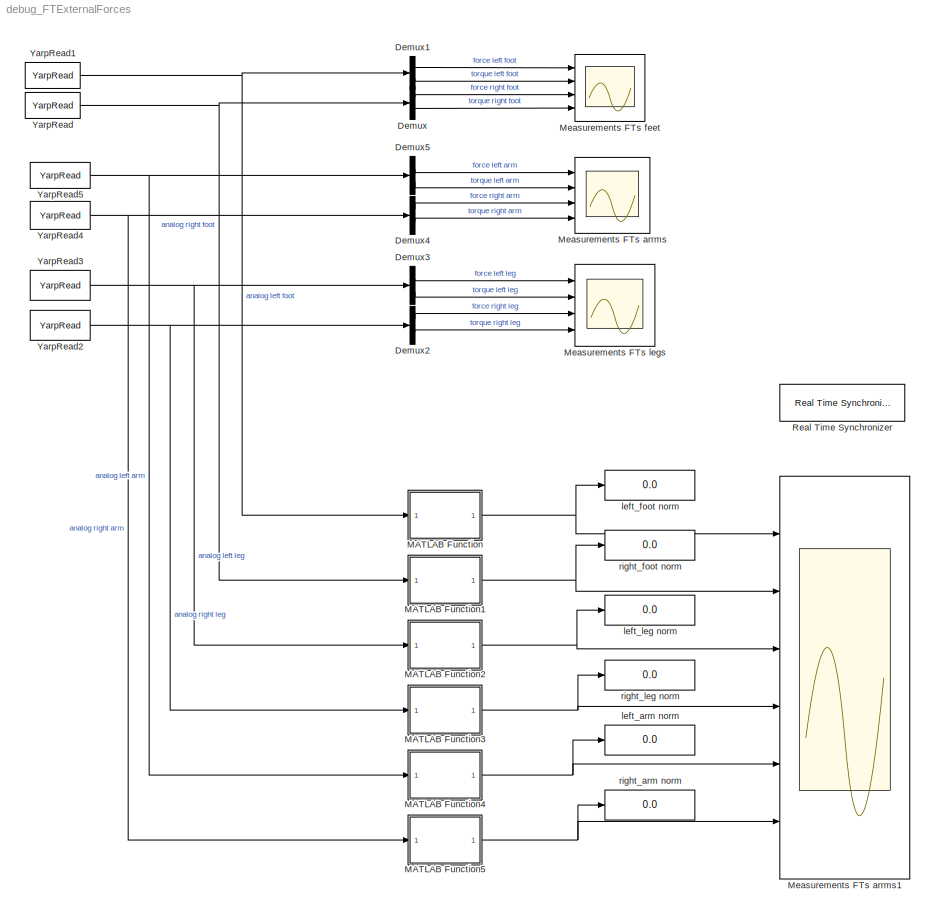
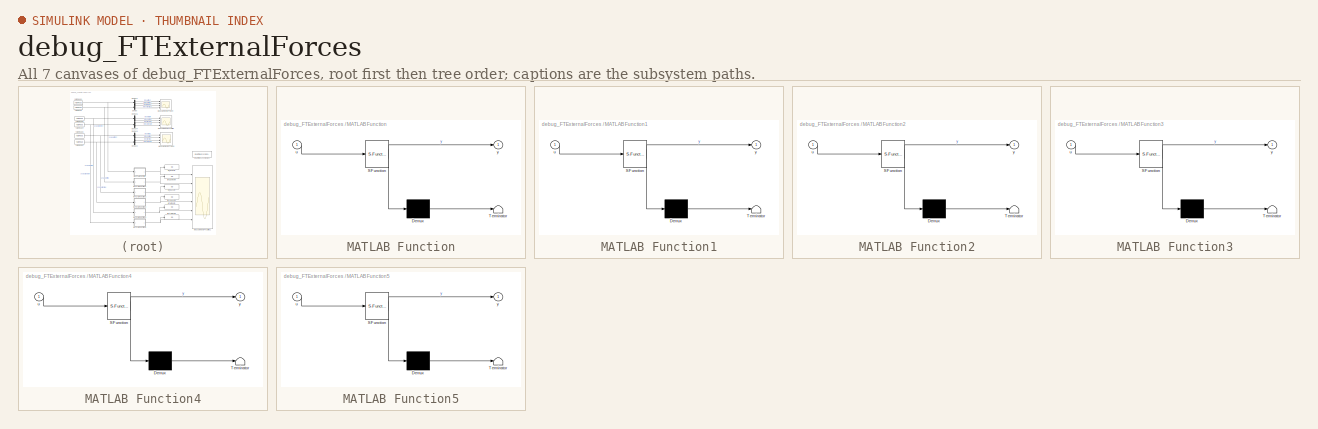
[diagram: thumbnail index - all 7 canvases of the model, root first then tree order]
MODEL debug_FTExternalForces
KIND model
CONFIG InitFcn = ROBOT_DOF=23;
BLOCK [Demux] Demux
  Outputs = 2
  Ports = [1, 2]
  SID = 18
BLOCK [Demux] Demux1
  Outputs = 2
  Ports = [1, 2]
  SID = 19
BLOCK [Demux] Demux2
  Outputs = 2
  Ports = [1, 2]
  SID = 25
BLOCK [Demux] Demux3
  Outputs = 2
  Ports = [1, 2]
  SID = 26
BLOCK [Demux] Demux4
  Outputs = 2
  Ports = [1, 2]
  SID = 34
BLOCK [Demux] Demux5
  Outputs = 2
  Ports = [1, 2]
  SID = 35
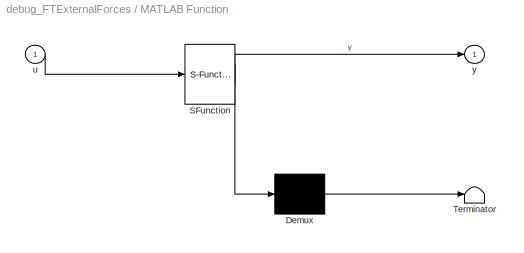
BLOCK [SubSystem] MATLAB Function
  ErrorFcn = Stateflow.Translate.translate
  PermitHierarchicalResolution = ExplicitOnly
  Ports = [1, 1]
  RequestExecContextInheritance = off
  SFBlockType = MATLAB Function
  SID = 43
  TreatAsAtomicUnit = on
BLOCK [Demux] MATLAB Function/ Demux 
  Outputs = 1
  Ports = [1, 1]
  SID = 43::86
BLOCK [S-Function] MATLAB Function/ SFunction 
  EnableBusSupport = off
  FunctionName = sf_sfun
  PortCounts = [1 2]
  Ports = [1, 2]
  SFcnIsStateOwnerBlock = off
  SFunctionDeploymentMode = off
  SID = 43::85
  Tag = Stateflow S-Function 2
BLOCK [Terminator] MATLAB Function/ Terminator 
  SID = 43::87
BLOCK [Inport] MATLAB Function/u
  SID = 43::1
BLOCK [Outport] MATLAB Function/y
  SID = 43::5
  VectorParamsAs1DForOutWhenUnconnected = off
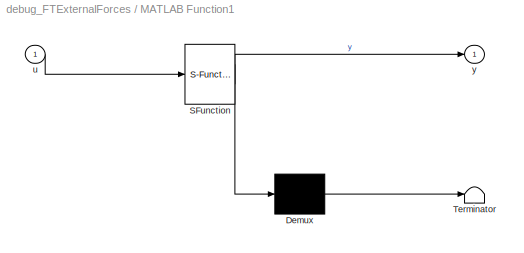
BLOCK [SubSystem] MATLAB Function1
  ErrorFcn = Stateflow.Translate.translate
  PermitHierarchicalResolution = ExplicitOnly
  Ports = [1, 1]
  RequestExecContextInheritance = off
  SFBlockType = MATLAB Function
  SID = 59
  TreatAsAtomicUnit = on
BLOCK [Demux] MATLAB Function1/ Demux 
  Outputs = 1
  Ports = [1, 1]
  SID = 59::86
BLOCK [S-Function] MATLAB Function1/ SFunction 
  EnableBusSupport = off
  FunctionName = sf_sfun
  PortCounts = [1 2]
  Ports = [1, 2]
  SFcnIsStateOwnerBlock = off
  SFunctionDeploymentMode = off
  SID = 59::85
  Tag = Stateflow S-Function 1
BLOCK [Terminator] MATLAB Function1/ Terminator 
  SID = 59::87
BLOCK [Inport] MATLAB Function1/u
  SID = 59::1
BLOCK [Outport] MATLAB Function1/y
  SID = 59::5
  VectorParamsAs1DForOutWhenUnconnected = off
BLOCK [SubSystem] MATLAB Function2
  ErrorFcn = Stateflow.Translate.translate
  PermitHierarchicalResolution = ExplicitOnly
  Ports = [1, 1]
  RequestExecContextInheritance = off
  SFBlockType = MATLAB Function
  SID = 60
  TreatAsAtomicUnit = on
BLOCK [Demux] MATLAB Function2/ Demux 
  Outputs = 1
  Ports = [1, 1]
  SID = 60::86
BLOCK [S-Function] MATLAB Function2/ SFunction 
  EnableBusSupport = off
  FunctionName = sf_sfun
  PortCounts = [1 2]
  Ports = [1, 2]
  SFcnIsStateOwnerBlock = off
  SFunctionDeploymentMode = off
  SID = 60::85
  Tag = Stateflow S-Function 3
BLOCK [Terminator] MATLAB Function2/ Terminator 
  SID = 60::87
BLOCK [Inport] MATLAB Function2/u
  SID = 60::1
BLOCK [Outport] MATLAB Function2/y
  SID = 60::5
  VectorParamsAs1DForOutWhenUnconnected = off
BLOCK [SubSystem] MATLAB Function3
  ErrorFcn = Stateflow.Translate.translate
  PermitHierarchicalResolution = ExplicitOnly
  Ports = [1, 1]
  RequestExecContextInheritance = off
  SFBlockType = MATLAB Function
  SID = 61
  TreatAsAtomicUnit = on
BLOCK [Demux] MATLAB Function3/ Demux 
  Outputs = 1
  Ports = [1, 1]
  SID = 61::86
BLOCK [S-Function] MATLAB Function3/ SFunction 
  EnableBusSupport = off
  FunctionName = sf_sfun
  PortCounts = [1 2]
  Ports = [1, 2]
  SFcnIsStateOwnerBlock = off
  SFunctionDeploymentMode = off
  SID = 61::85
  Tag = Stateflow S-Function 4
BLOCK [Terminator] MATLAB Function3/ Terminator 
  SID = 61::87
BLOCK [Inport] MATLAB Function3/u
  SID = 61::1
BLOCK [Outport] MATLAB Function3/y
  SID = 61::5
  VectorParamsAs1DForOutWhenUnconnected = off
BLOCK [SubSystem] MATLAB Function4
  ErrorFcn = Stateflow.Translate.translate
  PermitHierarchicalResolution = ExplicitOnly
  Ports = [1, 1]
  RequestExecContextInheritance = off
  SFBlockType = MATLAB Function
  SID = 62
  TreatAsAtomicUnit = on
BLOCK [Demux] MATLAB Function4/ Demux 
  Outputs = 1
  Ports = [1, 1]
  SID = 62::86
BLOCK [S-Function] MATLAB Function4/ SFunction 
  EnableBusSupport = off
  FunctionName = sf_sfun
  PortCounts = [1 2]
  Ports = [1, 2]
  SFcnIsStateOwnerBlock = off
  SFunctionDeploymentMode = off
  SID = 62::85
  Tag = Stateflow S-Function 5
BLOCK [Terminator] MATLAB Function4/ Terminator 
  SID = 62::87
BLOCK [Inport] MATLAB Function4/u
  SID = 62::1
BLOCK [Outport] MATLAB Function4/y
  SID = 62::5
  VectorParamsAs1DForOutWhenUnconnected = off
BLOCK [SubSystem] MATLAB Function5
  ErrorFcn = Stateflow.Translate.translate
  PermitHierarchicalResolution = ExplicitOnly
  Ports = [1, 1]
  RequestExecContextInheritance = off
  SFBlockType = MATLAB Function
  SID = 63
  TreatAsAtomicUnit = on
BLOCK [Demux] MATLAB Function5/ Demux 
  Outputs = 1
  Ports = [1, 1]
  SID = 63::86
BLOCK [S-Function] MATLAB Function5/ SFunction 
  EnableBusSupport = off
  FunctionName = sf_sfun
  PortCounts = [1 2]
  Ports = [1, 2]
  SFcnIsStateOwnerBlock = off
  SFunctionDeploymentMode = off
  SID = 63::85
  Tag = Stateflow S-Function 6
BLOCK [Terminator] MATLAB Function5/ Terminator 
  SID = 63::87
BLOCK [Inport] MATLAB Function5/u
  SID = 63::1
BLOCK [Outport] MATLAB Function5/y
  SID = 63::5
  VectorParamsAs1DForOutWhenUnconnected = off
BLOCK [Scope] Measurements FTs arrms
  Floating = off
  NumInputPorts = 4
  Ports = [4]
  SID = 36
  ScopeSpecificationString = Simulink.scopes.TimeScopeBlockCfg('CurrentConfiguration', extmgr.ConfigurationSet(extmgr.Configuration('Core','General UI',true),extmgr.Configuration('Core','Source UI',true),extmgr.Configuration('Sources','WiredSimulink',true,'DataLoggingVariableName','ScopeData1'),extmgr.Configuration('Visuals','Time Domain',true,'SerializedDisplays',{struct('MinYLimReal','-0.82779','MaxYLimReal','1.09268','YLab...<+3400ch>
BLOCK [Scope] Measurements FTs arrms1
  Floating = off
  NumInputPorts = 6
  Ports = [6]
  SID = 49
  ScopeSpecificationString = Simulink.scopes.TimeScopeBlockCfg('CurrentConfiguration', extmgr.ConfigurationSet(extmgr.Configuration('Core','General UI',true),extmgr.Configuration('Core','Source UI',true),extmgr.Configuration('Sources','WiredSimulink',true,'DataLoggingVariableName','ScopeData1'),extmgr.Configuration('Visuals','Time Domain',true,'SerializedDisplays',{struct('MinYLimReal','-0.82779','MaxYLimReal','1.09268','YLab...<+3400ch>
BLOCK [Scope] Measurements FTs feet
  Floating = off
  NumInputPorts = 4
  Ports = [4]
  SID = 10
  ScopeSpecificationString = Simulink.scopes.TimeScopeBlockCfg('CurrentConfiguration', extmgr.ConfigurationSet(extmgr.Configuration('Core','General UI',true),extmgr.Configuration('Core','Source UI',true),extmgr.Configuration('Sources','WiredSimulink',true,'DataLoggingVariableName','ScopeData1'),extmgr.Configuration('Visuals','Time Domain',true,'SerializedDisplays',{struct('MinYLimReal','-9.66328','MaxYLimReal','53.98887','YLa...<+3471ch>
BLOCK [Scope] Measurements FTs legs
  Floating = off
  NumInputPorts = 4
  Ports = [4]
  SID = 27
  ScopeSpecificationString = Simulink.scopes.TimeScopeBlockCfg('CurrentConfiguration', extmgr.ConfigurationSet(extmgr.Configuration('Core','General UI',true),extmgr.Configuration('Core','Source UI',true),extmgr.Configuration('Sources','WiredSimulink',true,'DataLoggingVariableName','ScopeData1'),extmgr.Configuration('Visuals','Time Domain',true,'SerializedDisplays',{struct('MinYLimReal','-23.57964','MaxYLimReal','37.68669','YL...<+3470ch>
BLOCK [Reference] Real Time Synchronizer  REF=WBToolboxLibrary/Utilities/Real Time Synchronizer
  MultiThreadCoSim = auto
  Ports = []
  SID = 16
  SourceBlock = WBToolboxLibrary/Utilities/Real Time Synchronizer
  SourceProductName = WholeBodyToolbox
  SourceType = Real Time Synchronizer
  period = 0.01
BLOCK [Reference] YarpRead  REF=WBToolboxLibrary/Utilities/YarpRead
  MultiThreadCoSim = auto
  Ports = [0, 1]
  SID = 17
  SourceBlock = WBToolboxLibrary/Utilities/YarpRead
  SourceProductName = WholeBodyToolbox
  SourceType = YARP Read
  autoconnect = on
  blocking = off
  errorOnConnection = off
  portName = '/icub/right_foot/analog:o'
  signalSize = 6
  timeout = 0.5
  timestamp = off
BLOCK [Reference] YarpRead1  REF=WBToolboxLibrary/Utilities/YarpRead
  MultiThreadCoSim = auto
  Ports = [0, 1]
  SID = 20
  SourceBlock = WBToolboxLibrary/Utilities/YarpRead
  SourceProductName = WholeBodyToolbox
  SourceType = YARP Read
  autoconnect = on
  blocking = off
  errorOnConnection = off
  portName = '/icub/left_foot/analog:o'
  signalSize = 6
  timeout = 0.5
  timestamp = off
BLOCK [Reference] YarpRead2  REF=WBToolboxLibrary/Utilities/YarpRead
  MultiThreadCoSim = auto
  Ports = [0, 1]
  SID = 30
  SourceBlock = WBToolboxLibrary/Utilities/YarpRead
  SourceProductName = WholeBodyToolbox
  SourceType = YARP Read
  autoconnect = on
  blocking = off
  errorOnConnection = off
  portName = '/icub/right_leg/analog:o'
  signalSize = 6
  timeout = 0.5
  timestamp = off
BLOCK [Reference] YarpRead3  REF=WBToolboxLibrary/Utilities/YarpRead
  MultiThreadCoSim = auto
  Ports = [0, 1]
  SID = 31
  SourceBlock = WBToolboxLibrary/Utilities/YarpRead
  SourceProductName = WholeBodyToolbox
  SourceType = YARP Read
  autoconnect = on
  blocking = off
  errorOnConnection = off
  portName = '/icub/left_leg/analog:o'
  signalSize = 6
  timeout = 0.5
  timestamp = off
BLOCK [Reference] YarpRead4  REF=WBToolboxLibrary/Utilities/YarpRead
  MultiThreadCoSim = auto
  Ports = [0, 1]
  SID = 39
  SourceBlock = WBToolboxLibrary/Utilities/YarpRead
  SourceProductName = WholeBodyToolbox
  SourceType = YARP Read
  autoconnect = on
  blocking = off
  errorOnConnection = off
  portName = '/icub/right_arm/analog:o'
  signalSize = 6
  timeout = 0.5
  timestamp = off
BLOCK [Reference] YarpRead5  REF=WBToolboxLibrary/Utilities/YarpRead
  MultiThreadCoSim = auto
  Ports = [0, 1]
  SID = 40
  SourceBlock = WBToolboxLibrary/Utilities/YarpRead
  SourceProductName = WholeBodyToolbox
  SourceType = YARP Read
  autoconnect = on
  blocking = off
  errorOnConnection = off
  portName = '/icub/left_arm/analog:o'
  signalSize = 6
  timeout = 0.5
  timestamp = off
BLOCK [Display] left_arm norm
  Decimation = 1
  Ports = [1]
  SID = 57
BLOCK [Display] left_foot norm
  Decimation = 1
  Ports = [1]
  SID = 54
BLOCK [Display] left_leg norm
  Decimation = 1
  Ports = [1]
  SID = 55
BLOCK [Display] right_arm norm
  Decimation = 1
  Ports = [1]
  SID = 58
BLOCK [Display] right_foot norm
  Decimation = 1
  Ports = [1]
  SID = 53
BLOCK [Display] right_leg norm
  Decimation = 1
  Ports = [1]
  SID = 56
LINE Demux1:1 -> Measurements FTs feet:1
LINE Demux1:2 -> Measurements FTs feet:2
LINE Demux2:1 -> Measurements FTs legs:3
LINE Demux2:2 -> Measurements FTs legs:4
LINE Demux3:1 -> Measurements FTs legs:1
LINE Demux3:2 -> Measurements FTs legs:2
LINE Demux4:1 -> Measurements FTs arrms:3
LINE Demux4:2 -> Measurements FTs arrms:4
LINE Demux5:1 -> Measurements FTs arrms:1
LINE Demux5:2 -> Measurements FTs arrms:2
LINE Demux:1 -> Measurements FTs feet:3
LINE Demux:2 -> Measurements FTs feet:4
LINE MATLAB Function/ Demux :1 -> MATLAB Function/ Terminator :1
LINE MATLAB Function/ SFunction :1 -> MATLAB Function/ Demux :1
LINE MATLAB Function/ SFunction :2 -> MATLAB Function/y:1
LINE MATLAB Function/u:1 -> MATLAB Function/ SFunction :1
LINE MATLAB Function1/ Demux :1 -> MATLAB Function1/ Terminator :1
LINE MATLAB Function1/ SFunction :1 -> MATLAB Function1/ Demux :1
LINE MATLAB Function1/ SFunction :2 -> MATLAB Function1/y:1
LINE MATLAB Function1/u:1 -> MATLAB Function1/ SFunction :1
NET MATLAB Function1:1 -> Measurements FTs arrms1:2, right_foot norm:1
LINE MATLAB Function2/ Demux :1 -> MATLAB Function2/ Terminator :1
LINE MATLAB Function2/ SFunction :1 -> MATLAB Function2/ Demux :1
LINE MATLAB Function2/ SFunction :2 -> MATLAB Function2/y:1
LINE MATLAB Function2/u:1 -> MATLAB Function2/ SFunction :1
NET MATLAB Function2:1 -> Measurements FTs arrms1:3, left_leg norm:1
LINE MATLAB Function3/ Demux :1 -> MATLAB Function3/ Terminator :1
LINE MATLAB Function3/ SFunction :1 -> MATLAB Function3/ Demux :1
LINE MATLAB Function3/ SFunction :2 -> MATLAB Function3/y:1
LINE MATLAB Function3/u:1 -> MATLAB Function3/ SFunction :1
NET MATLAB Function3:1 -> Measurements FTs arrms1:4, right_leg norm:1
LINE MATLAB Function4/ Demux :1 -> MATLAB Function4/ Terminator :1
LINE MATLAB Function4/ SFunction :1 -> MATLAB Function4/ Demux :1
LINE MATLAB Function4/ SFunction :2 -> MATLAB Function4/y:1
LINE MATLAB Function4/u:1 -> MATLAB Function4/ SFunction :1
NET MATLAB Function4:1 -> Measurements FTs arrms1:5, left_arm norm:1
LINE MATLAB Function5/ Demux :1 -> MATLAB Function5/ Terminator :1
LINE MATLAB Function5/ SFunction :1 -> MATLAB Function5/ Demux :1
LINE MATLAB Function5/ SFunction :2 -> MATLAB Function5/y:1
LINE MATLAB Function5/u:1 -> MATLAB Function5/ SFunction :1
NET MATLAB Function5:1 -> Measurements FTs arrms1:6, right_arm norm:1
NET MATLAB Function:1 -> Measurements FTs arrms1:1, left_foot norm:1
NET YarpRead1:1 -> Demux1:1, MATLAB Function:1
NET YarpRead2:1 -> Demux2:1, MATLAB Function3:1
NET YarpRead3:1 -> Demux3:1, MATLAB Function2:1
NET YarpRead4:1 -> Demux4:1, MATLAB Function5:1
NET YarpRead5:1 -> Demux5:1, MATLAB Function4:1
NET YarpRead:1 -> Demux:1, MATLAB Function1:1
note: NET lines group one-source signal fan-out (src -> all destinations, sorted); 1:1 wires keep LINE
CHART MATLAB Function1 states=1 transitions=1
  STATE_LABEL 'eML_blk_kernel()'
CHART MATLAB Function states=1 transitions=1
  STATE_LABEL 'eML_blk_kernel()'
CHART MATLAB Function2 states=1 transitions=1
  STATE_LABEL 'eML_blk_kernel()'
CHART MATLAB Function3 states=1 transitions=1
  STATE_LABEL 'eML_blk_kernel()'
CHART MATLAB Function4 states=1 transitions=1
  STATE_LABEL 'eML_blk_kernel()'
CHART MATLAB Function5 states=1 transitions=1
  STATE_LABEL 'eML_blk_kernel()'
